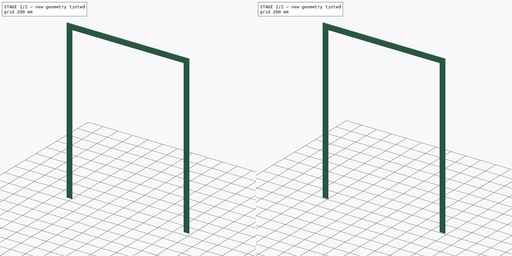
[diagram: build sequence overview — one tinted view per stage of 2, left to right]
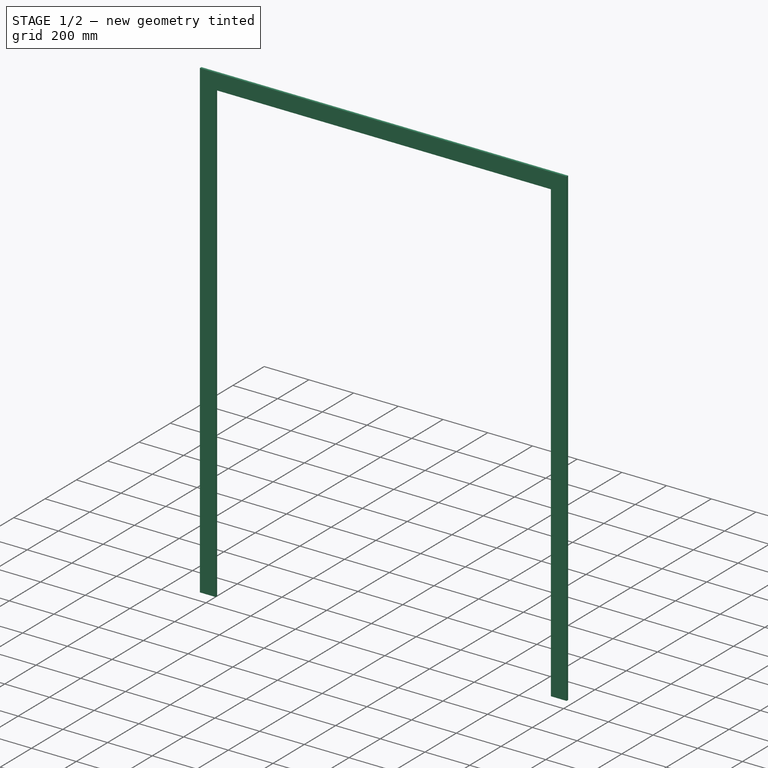
[diagram: stage 1 of 2 — iso view after this stage's code; geometry added in this stage tinted green]
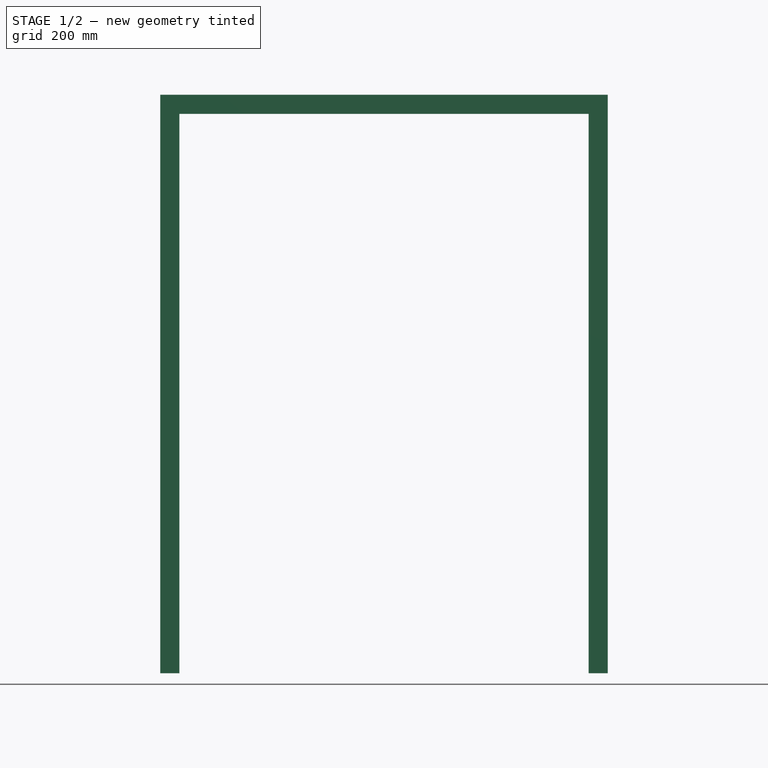
[diagram: stage 1 of 2 — front view after this stage's code; geometry added in this stage tinted green]
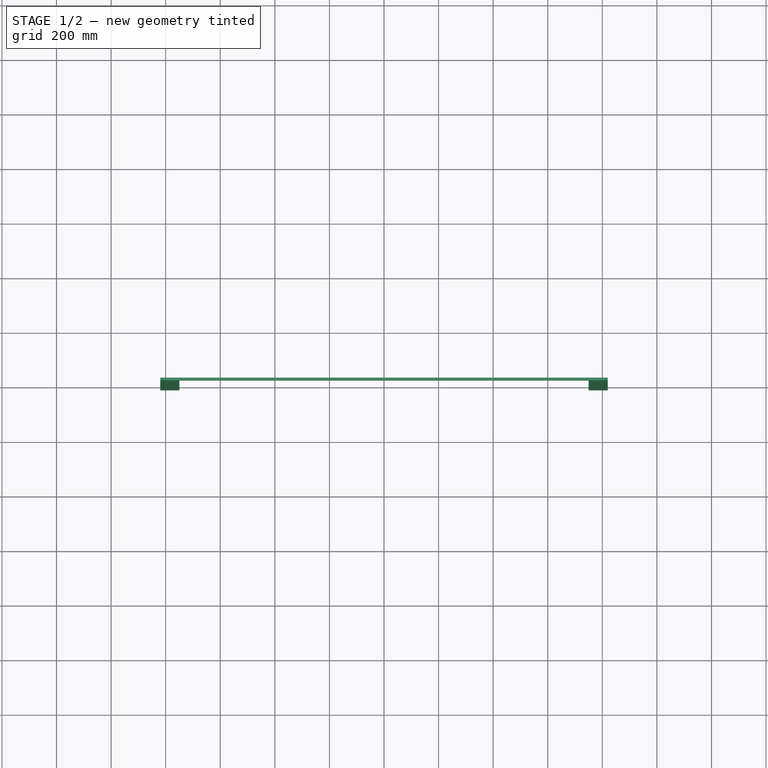
[diagram: stage 1 of 2 — top view after this stage's code; geometry added in this stage tinted green]
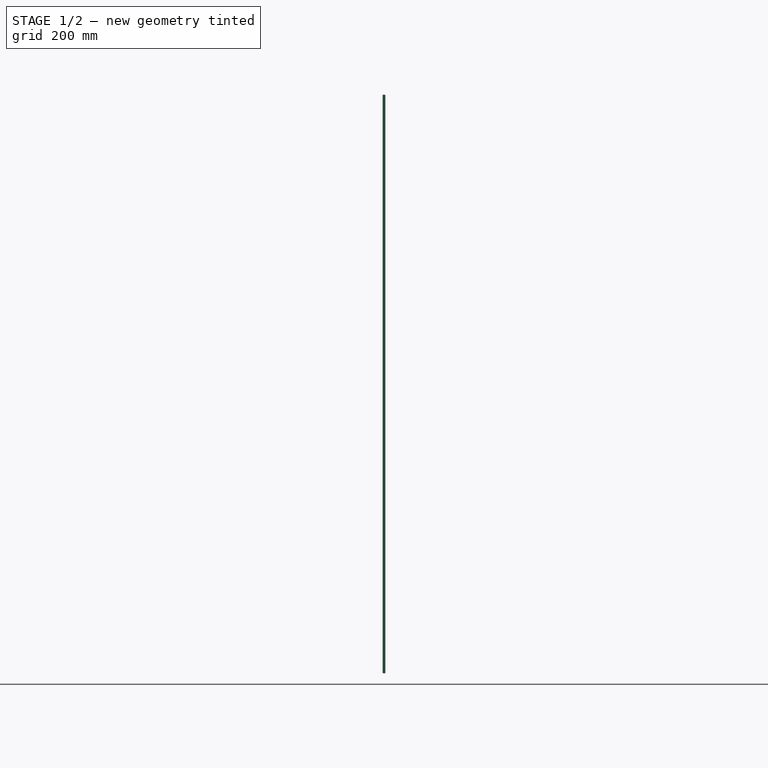
[diagram: stage 1 of 2 — right view after this stage's code; geometry added in this stage tinted green]
FCSTD DOCUMENT  (FreeCAD 0.16R6704 (Git))
Label: Double doors and trims
License: CreativeCommons Attribution
LicenseURL: http://creativecommons.org/licenses/by/4.0/
objects: Sketcher::SketchObject×2, Part::FeaturePython×2, Part::Extrusion×1, App::DocumentObjectGroup×1
note: 5 computed .brp shape members not serialized (recipe doc carries the construction recipe); baked Part::Feature solids carry a one-line shape summary decoded from their .brp

FEATURE [Sketcher::SketchObject] Sketch056
  Placement = pos=(0,0,0) rot=(1,0,0;1.5708rad)
  sketch-geometry (17):
    g0: LineSegment StartX=0 StartY=0 StartZ=0 EndX=1600 EndY=0 EndZ=0
    g1: LineSegment StartX=1600 StartY=0 StartZ=0 EndX=1600 EndY=2100 EndZ=0
    g2: LineSegment StartX=1600 StartY=2100 StartZ=0 EndX=0 EndY=2100 EndZ=0
    g3: LineSegment StartX=0 StartY=2100 StartZ=0 EndX=0 EndY=0 EndZ=0
    g4: LineSegment StartX=50 StartY=2050 StartZ=0 EndX=1550 EndY=2050 EndZ=0
    g5: LineSegment StartX=1550 StartY=2050 StartZ=0 EndX=1550 EndY=0 EndZ=0
    g6: LineSegment StartX=1550 StartY=0 StartZ=0 EndX=50 EndY=0 EndZ=0
    g7: LineSegment StartX=50 StartY=0 StartZ=0 EndX=50 EndY=2050 EndZ=0
    g8: LineSegment StartX=51 StartY=2049 StartZ=0 EndX=801 EndY=2049 EndZ=0
    g9: LineSegment StartX=801 StartY=2049 StartZ=0 EndX=801 EndY=5 EndZ=0
    g10: LineSegment StartX=801 StartY=5 StartZ=0 EndX=51 EndY=5 EndZ=0
    g11: LineSegment StartX=51 StartY=5 StartZ=0 EndX=51 EndY=2049 EndZ=0
    g12: LineSegment StartX=799 StartY=2049 StartZ=0 EndX=1549 EndY=2049 EndZ=0
    g13: LineSegment StartX=1549 StartY=2049 StartZ=0 EndX=1549 EndY=5 EndZ=0
    g14: LineSegment StartX=1549 StartY=5 StartZ=0 EndX=799 EndY=5 EndZ=0
    g15: LineSegment StartX=799 StartY=5 StartZ=0 EndX=799 EndY=2049 EndZ=0
    g16: LineSegment [constr] StartX=800 StartY=2281.92 StartZ=0 EndX=800 EndY=-210 EndZ=0
  constraints (48):
    c: Coincident(g0,g1)
    c: Coincident(g1,g2)
    c: Coincident(g2,g3)
    c: Coincident(g3,g0)
    c: Horizontal(g0)
    c: Horizontal(g2)
    c: Vertical(g1)
    c: Vertical(g3)
    c: DistanceX(g2,g1) = 1600  'Largura do vão'
    c: Coincident(g4,g5)  'Constraint10'
    c: Coincident(g5,g6)
    c: Coincident(g6,g7)
    c: Coincident(g7,g4)
    c: Horizontal(g4)
    c: Horizontal(g6)
    c: Vertical(g5)
    c: Vertical(g7)
    c: PointOnObject(g5,g0)
    c: DistanceX(g2,g4) = 50  'Largura batente 1'
    c: DistanceY(g4,g2) = 50  'Altura batente'
    c: DistanceX(g4,g1) = 50  'Largura batente 2'
    c: Coincident(g8,g9)
    c: Coincident(g9,g10)
    c: Coincident(g10,g11)
    c: Coincident(g11,g8)
    c: Horizontal(g8)
    c: Horizontal(g10)
    c: Vertical(g9)
    c: Vertical(g11)
    c: Coincident(g12,g13)
    c: Coincident(g13,g14)
    c: Coincident(g14,g15)
    c: Coincident(g15,g12)
    c: Horizontal(g12)
    c: Horizontal(g14)
    c: Vertical(g13)
    c: Vertical(g15)
    c: DistanceX(g4,g8) = 1
    c: DistanceY(g8,g4) = 1
    c: Vertical(g16)
    c: DistanceX(g12,g8) = 2  'Constraint41'
    c: DistanceX(g12,g4) = 1
    c: Symmetric(g8,g12,g16)
    c: DistanceY(g13,g5) = -5
    c: Coincident(g0,g-1)
    c: DistanceY(g-1,g2) = 2100  'Altura do vão'
    c: Symmetric(g2,g1,g16)  'Constraint48'
    c: DistanceY(g6,g10) = 5
FEATURE [Part::FeaturePython] Window054  label="Double doors"  # WARN: FeaturePython — macro-defined, semantics opaque (R4)
  Base = -> Sketch056
  Height = 0
  HoleDepth = 0
  MoveWithHost = true
  Normal = (0,1,0)
  Preset = 0
  Role = 0
  Width = 0
  WindowParts = BATENTE | Frame | Wire0,Wire1,Wire2,Wire3 | 140.0 | 0.0 | PORTA 1 | Solid panel | Wire2 | 40.0 | 100.0 | PORTA 2 | Solid panel | Wire3 | 40.0 | 100.0
FEATURE [Sketcher::SketchObject] Sketch191  label="Esboço guarnições 004"
  ExternalGeometry = -> [Window054]
  Placement = pos=(0,0,0) rot=(1,0,0;1.5708rad)
  Support = -> Window054 [Face2]
  sketch-geometry (8):
    g0: LineSegment StartX=50 StartY=0 StartZ=0 EndX=50 EndY=2050 EndZ=0
    g1: LineSegment StartX=50 StartY=2050 StartZ=0 EndX=1550 EndY=2050 EndZ=0
    g2: LineSegment StartX=1550 StartY=2050 StartZ=0 EndX=1550 EndY=0 EndZ=0
    g3: LineSegment StartX=1550 StartY=0 StartZ=0 EndX=1620 EndY=0 EndZ=0
    g4: LineSegment StartX=1620 StartY=0 StartZ=0 EndX=1620 EndY=2120 EndZ=0
    g5: LineSegment StartX=1620 StartY=2120 StartZ=0 EndX=-20 EndY=2120 EndZ=0
    g6: LineSegment StartX=-20 StartY=2120 StartZ=0 EndX=-20 EndY=0 EndZ=0
    g7: LineSegment StartX=-20 StartY=0 StartZ=0 EndX=50 EndY=0 EndZ=0
  constraints (21):
    c: Coincident(g-3,g0)
    c: Coincident(g0,g-4)
    c: Coincident(g0,g1)
    c: Horizontal(g1)
    c: Coincident(g1,g2)
    c: Coincident(g2,g-5)
    c: Vertical(g2)
    c: Coincident(g2,g3)
    c: Horizontal(g3)
    c: Coincident(g3,g4)
    c: Vertical(g4)
    c: Coincident(g4,g5)
    c: Horizontal(g5)
    c: Coincident(g5,g6)
    c: Vertical(g6)
    c: Coincident(g6,g7)
    c: Coincident(g7,g0)
    c: Horizontal(g7)
    c: DistanceX(g5,g0) = 70  'Largura guarnição 1'
    c: DistanceY(g0,g5) = 70  'Altura guarnição 1'
    c: DistanceX(g1,g4) = 70  'Largura guarnição 2'
FEATURE [Part::Extrusion] Extrude_Sketch191  label="Trim"
  Base = -> Sketch191
  Dir = (0,-10,0)
  Solid = true
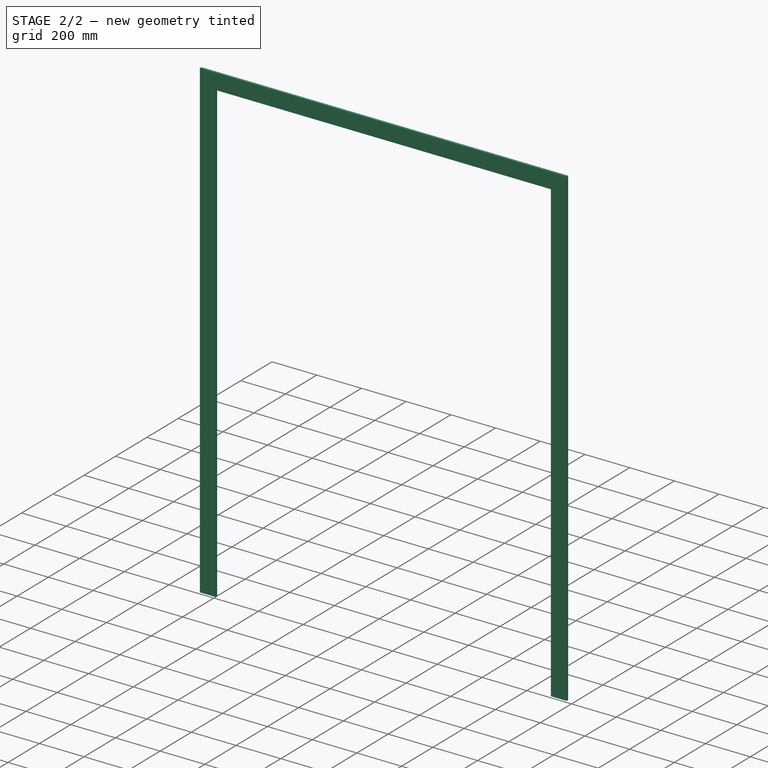
[diagram: stage 2 of 2 — iso view after this stage's code; geometry added in this stage tinted green]
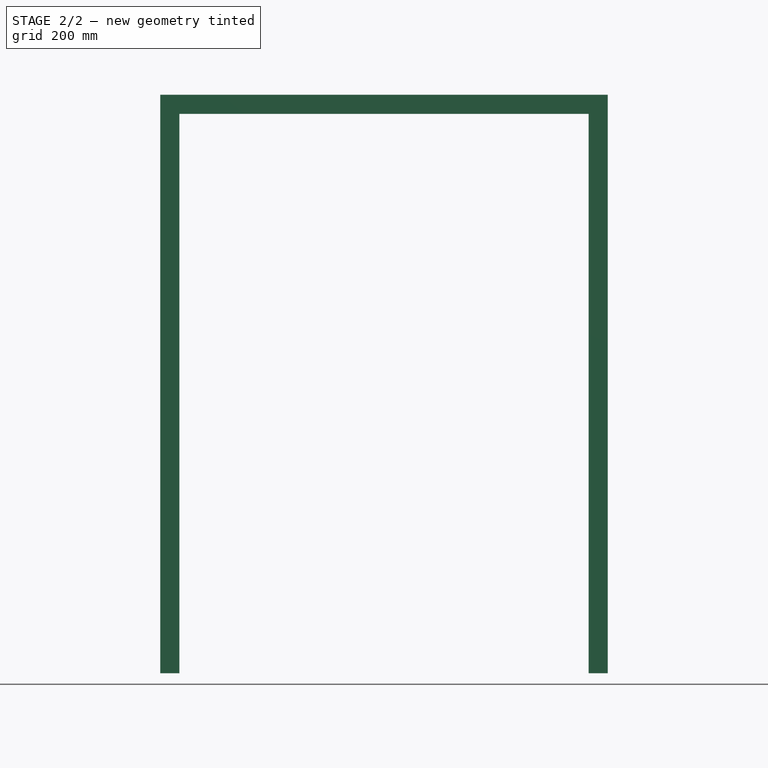
[diagram: stage 2 of 2 — front view after this stage's code; geometry added in this stage tinted green]
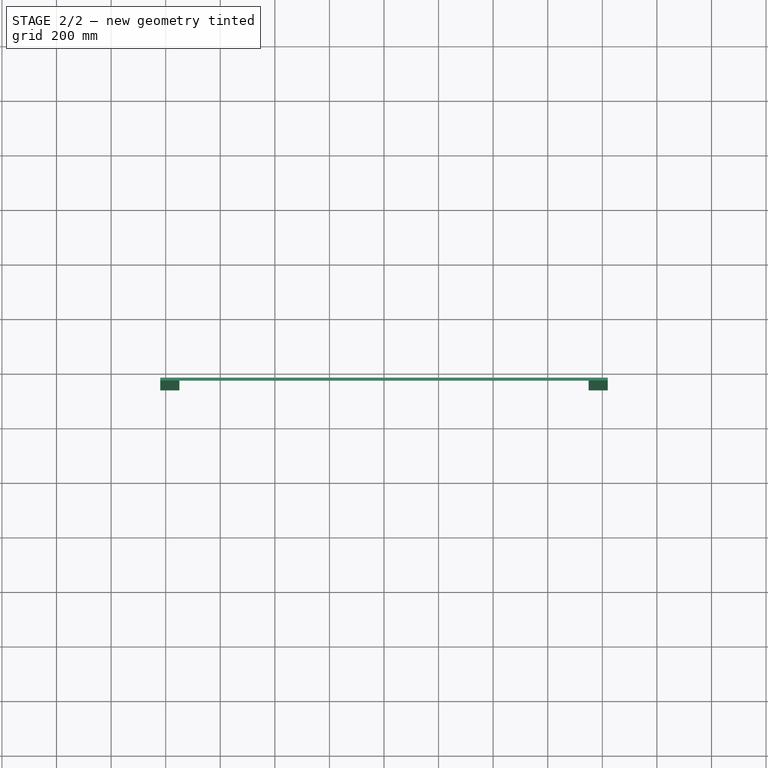
[diagram: stage 2 of 2 — top view after this stage's code; geometry added in this stage tinted green]
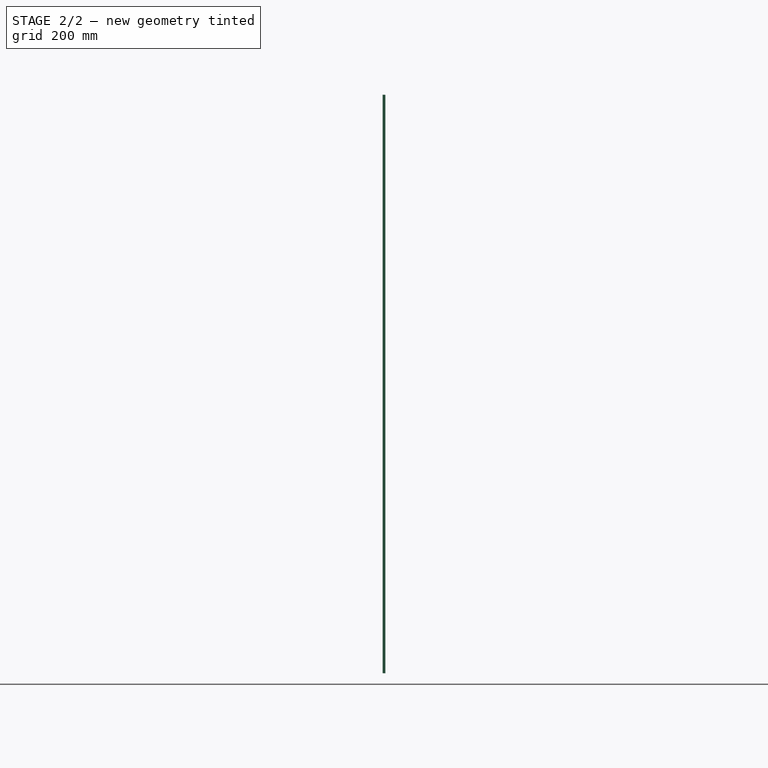
[diagram: stage 2 of 2 — right view after this stage's code; geometry added in this stage tinted green]
FEATURE [Part::FeaturePython] Clone  label="Clone of trim"  # Draft clone (typed FeaturePython)
  Objects = -> [Extrude_Sketch191]
  Placement = pos=(0,150,0) rot=(0,0,1;0rad)
  Scale = (1,1,1)
FEATURE [App::DocumentObjectGroup] Grupo113  label="Double doors and trims"
  Group = -> [Window054,Extrude_Sketch191,Clone,Sketch191]
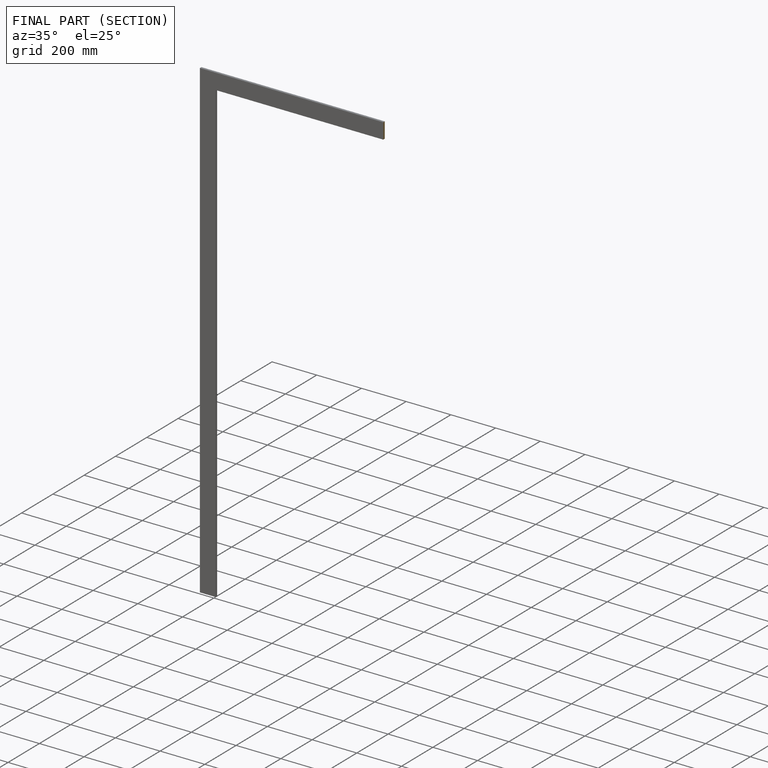
[diagram: finished part — half-section view (interior)]
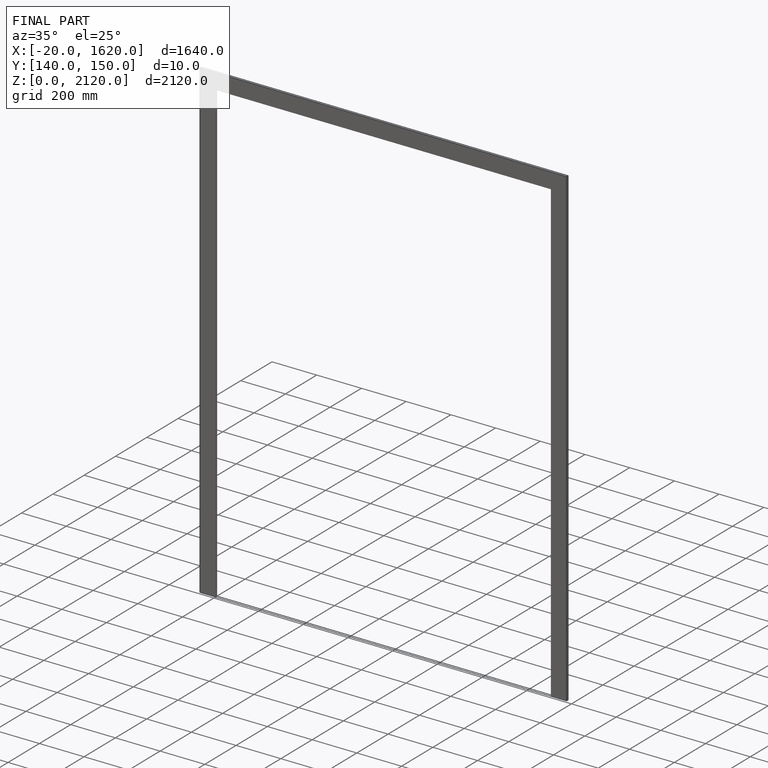
[diagram: finished part — iso view with bounding-box wireframe]
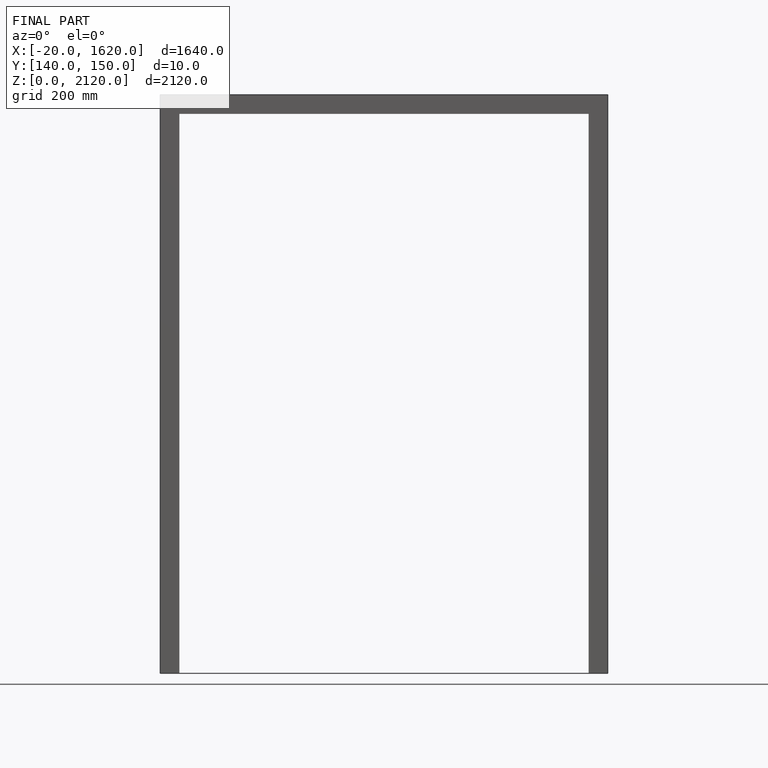
[diagram: finished part — front view with bounding-box wireframe]
